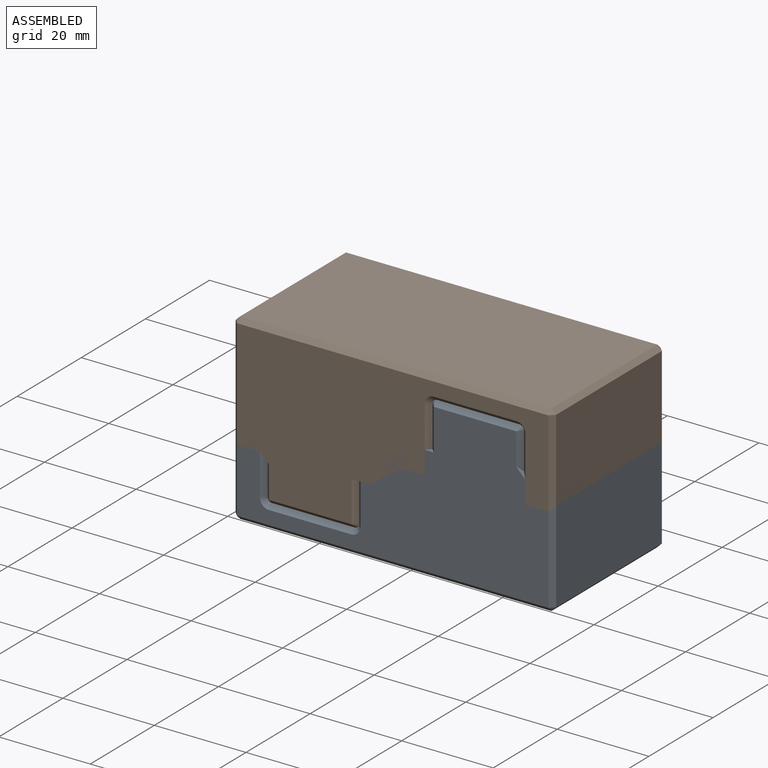
[diagram: assembled view]
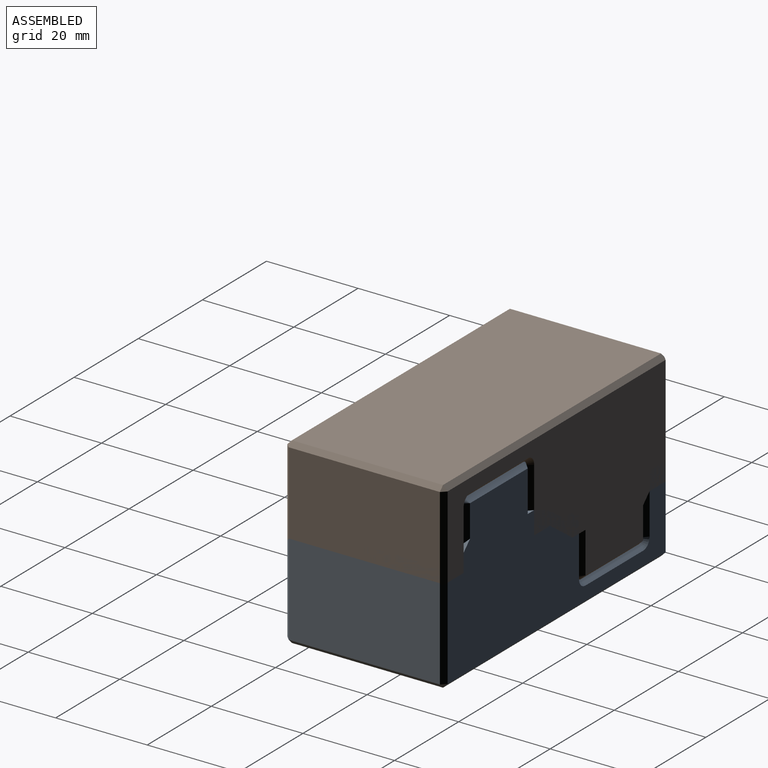
[diagram: assembled view, second angle]
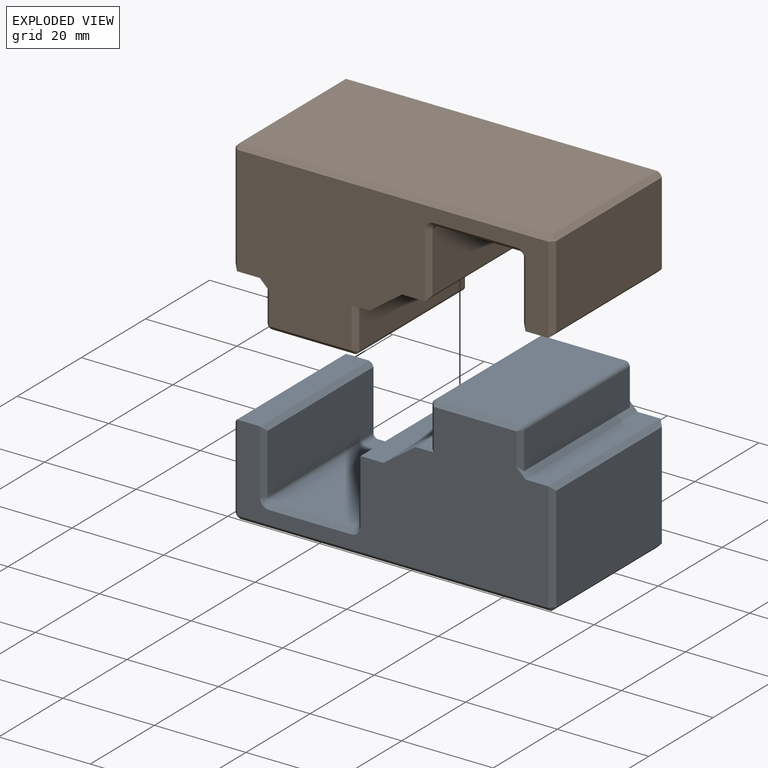
[diagram: exploded view]
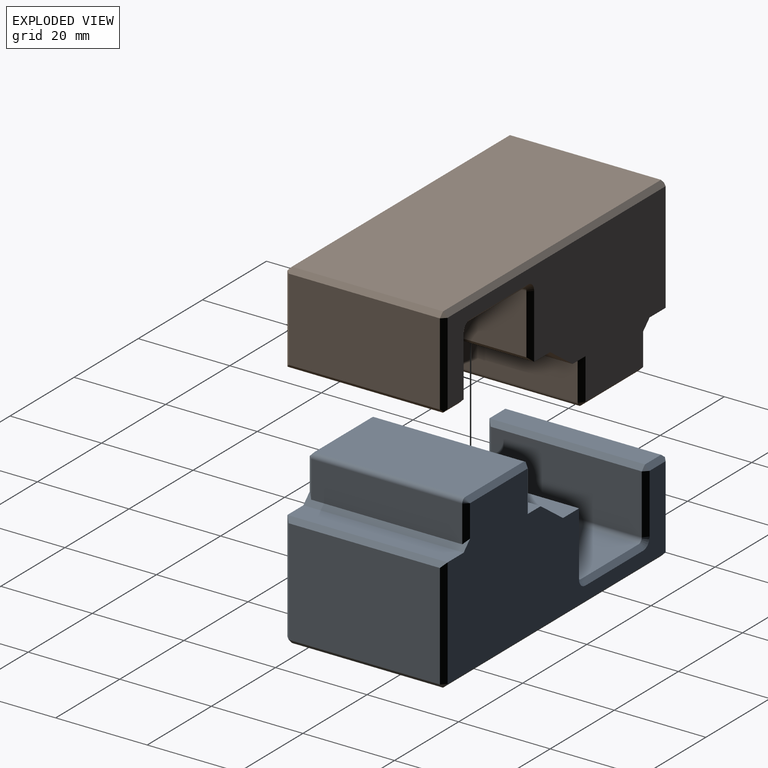
[diagram: exploded view, second angle]
ASSEMBLY  parts=2 mates=2
PART A: 59 faces, bbox 70x35x35 mm
  f0: plane 34x5mm, normal (0,0,-1), area 170mm2, adj f14,f17,f53,f54
  f1: plane 33x18mm, normal (1,0,0), area 594mm2, adj f17,f18,f19,f20
  f2: plane 68x33mm, normal (0,0,1), area 2244mm2, adj f20,f23,f24,f25
  f3: plane 33x23mm, normal (-1,0,0), area 759mm2, adj f25,f28,f29,f30
  f4: plane 35x5mm, normal (0,0,-1), area 175mm2, adj f14,f15,f16,f30
  f5: plane 33x8mm, normal (-1,0,0), area 264mm2, adj f16,f31,f35,f40
  f6: plane 33x18mm, normal (0,0,-1), area 594mm2, adj f31,f32,f37,f42
  f7: plane 33x9mm, normal (1,0,0), area 297mm2, adj f8,f32,f39,f44
  f8: plane 35x4.02mm, normal (0,0,-1), area 106.6mm2, adj f7,f9,f14,f15,f39,f44
  f9: plane 35x6.98mm, normal (0.58,0,-0.81), area 300.6mm2, adj f8,f10,f14,f15
  f10: plane 35x5mm, normal (0,0,-1), area 175mm2, adj f9,f14,f15,f48
  f11: plane 33x13mm, normal (1,0,0), area 429mm2, adj f33,f46,f48,f50
  f12: plane 33x18mm, normal (0,0,-1), area 594mm2, adj f33,f34,f47,f55
  f13: plane 33x13mm, normal (-1,0,0), area 429mm2, adj f34,f51,f53,f58
  f14: plane 68x33mm, normal (0,-1,0), area 1268.3mm2, adj f0,f4,f8,f9,f10,f16,f18,f23
  f15: plane 68x33mm, normal (0,1,0), area 1263.3mm2, adj f4,f8,f9,f10,f16,f19,f24,f29
  f16: plane 35x2mm, normal (-0.71,0,-0.71), area 50.9mm2, adj f4,f5,f14,f15,f35,f40
  f17: plane 34.5x1mm, normal (0.71,0,-0.71), area 47.7mm2, adj f0,f1,f18,f19,f54
  f18: plane 19x1mm, normal (0.71,-0.71,0), area 26.2mm2, adj f1,f14,f17,f21
  f19: plane 18.5x1mm, normal (0.71,0.71,0), area 25.8mm2, adj f1,f15,f17,f22,f54
  f20: plane 33x1mm, normal (0.71,0,0.71), area 46.7mm2, adj f1,f2,f21,f22
  f21: plane 1x1mm, normal (0.58,-0.58,0.58), area 0.9mm2, adj f18,f20,f23
  f22: plane 1x1mm, normal (0.58,0.58,0.58), area 0.9mm2, adj f19,f20,f24
  f23: plane 68x1mm, normal (0,-0.71,0.71), area 96.2mm2, adj f2,f14,f21,f26
  f24: plane 68x1mm, normal (0,0.71,0.71), area 96.2mm2, adj f2,f15,f22,f27
  f25: plane 33x1mm, normal (-0.71,0,0.71), area 46.7mm2, adj f2,f3,f26,f27
  f26: plane 1x1mm, normal (-0.58,-0.58,0.58), area 0.9mm2, adj f23,f25,f28
  f27: plane 1x1mm, normal (-0.58,0.58,0.58), area 0.9mm2, adj f24,f25,f29
  f28: plane 24x1mm, normal (-0.71,-0.71,0), area 33.2mm2, adj f3,f14,f26,f30
  f29: plane 24x1mm, normal (-0.71,0.71,0), area 33.2mm2, adj f3,f15,f27,f30
  f30: plane 35x1mm, normal (-0.71,0,-0.71), area 48.1mm2, adj f3,f4,f28,f29
  f31: cylinder r=1mm len=33mm, axis (0,1,0), area 51.8mm2, adj f5,f6,f36,f41
  f32: cylinder r=1mm len=33mm, axis (0,1,0), area 51.8mm2, adj f6,f7,f38,f43
  f33: cylinder r=1mm len=33mm, axis (0,-1,0), area 51.8mm2, adj f11,f12,f45,f52
  f34: cylinder r=1mm len=33mm, axis (0,-1,0), area 51.8mm2, adj f12,f13,f49,f57
  f35: plane 8x1mm, normal (-0.71,-0.71,0), area 10.6mm2, adj f5,f14,f16,f36
  f36: cone r=1mm half-angle=45deg, axis (0,1,0), area 1.1mm2, adj f31,f35,f37
  f37: plane 18x1mm, normal (0,-0.71,-0.71), area 25.5mm2, adj f6,f14,f36,f38
  f38: cone r=1mm half-angle=45deg, axis (0,1,0), area 1.1mm2, adj f32,f37,f39
  f39: plane 9x1mm, normal (0.71,-0.71,0), area 12.7mm2, adj f7,f8,f14,f38
  f40: plane 8x1mm, normal (-0.71,0.71,0), area 10.6mm2, adj f5,f15,f16,f41
  f41: cone r=1mm half-angle=45deg, axis (0,-1,0), area 1.1mm2, adj f31,f40,f42
  f42: plane 18x1mm, normal (0,0.71,-0.71), area 25.5mm2, adj f6,f15,f41,f43
  f43: cone r=1mm half-angle=45deg, axis (0,-1,0), area 1.1mm2, adj f32,f42,f44
  f44: plane 9x1mm, normal (0.71,0.71,0), area 12.7mm2, adj f7,f8,f15,f43
  f45: cone r=2mm half-angle=45deg, axis (0,-1,0), area 3.3mm2, adj f14,f33,f46,f47
  f46: plane 14x1mm, normal (0.71,-0.71,0), area 19.1mm2, adj f11,f14,f45,f48
  f47: plane 18x1mm, normal (0,-0.71,-0.71), area 25.5mm2, adj f12,f14,f45,f49
  f48: plane 35x1mm, normal (0.71,0,-0.71), area 48.1mm2, adj f10,f11,f46,f50
  f49: cone r=2mm half-angle=45deg, axis (0,-1,0), area 3.3mm2, adj f14,f34,f47,f51
  f50: plane 14x1mm, normal (0.71,0.71,0), area 19.1mm2, adj f11,f15,f48,f52
  f51: plane 14x1mm, normal (-0.71,-0.71,0), area 19.1mm2, adj f13,f14,f49,f53
  f52: cone r=2mm half-angle=45deg, axis (0,1,0), area 3.3mm2, adj f15,f33,f50,f55
  f53: plane 34x1mm, normal (-0.71,0,-0.71), area 47.4mm2, adj f0,f13,f51,f56
  f54: plane 5.5x1mm, normal (0,0.71,-0.71), area 7.4mm2, adj f0,f15,f17,f19,f56
  f55: plane 18x1mm, normal (0,0.71,-0.71), area 25.5mm2, adj f12,f15,f52,f57
  f56: plane 1x1mm, normal (-0.58,0.58,-0.58), area 0.9mm2, adj f53,f54,f58
  f57: cone r=2mm half-angle=45deg, axis (0,1,0), area 3.3mm2, adj f15,f34,f55,f58
  f58: plane 13x1mm, normal (-0.71,0.71,0), area 18.4mm2, adj f13,f15,f56,f57
PART B: same geometry as A
PLACE A rot(axis=(0,1,0),180deg) t=(4.05,14.56,-4.65)mm
PLACE B t=(-7.89,14.56,-4.65)mm
MATE planar A.f12 <-> B.f6  axis (0,0,1) through (-19.92,14.56,-19.65)mm
MATE slider B.f12 <-> A.f6  axis (0,0,-1) through (16.08,14.56,10.35)mm
